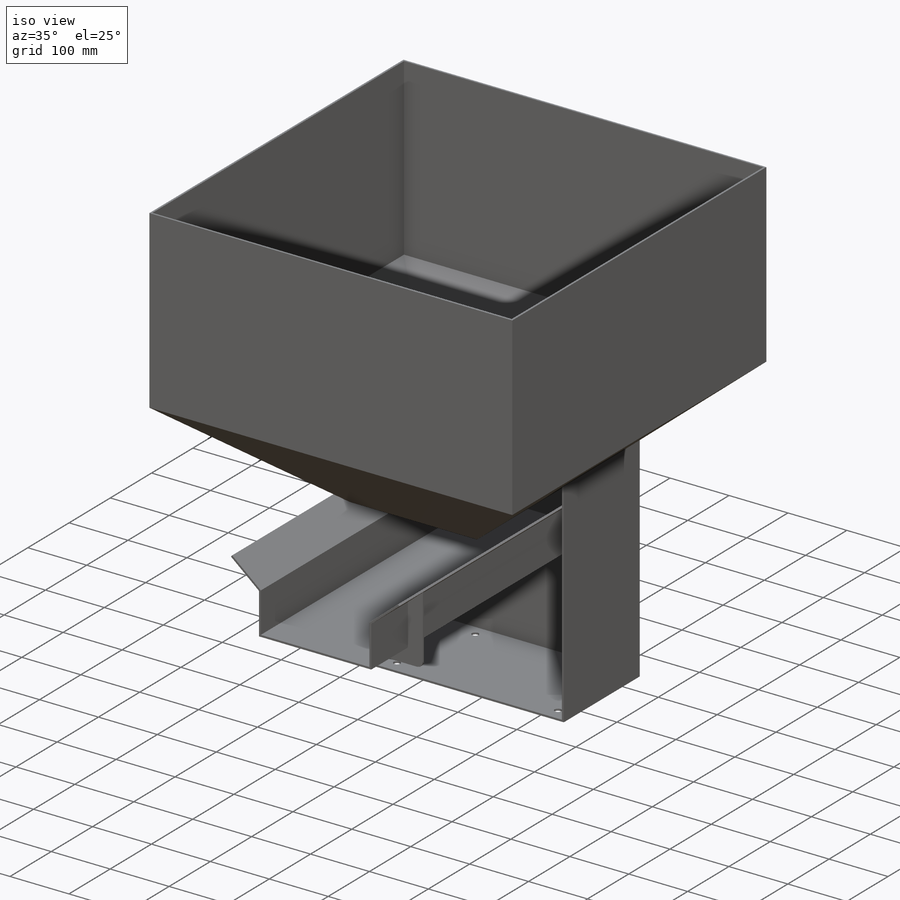
[diagram: iso view]
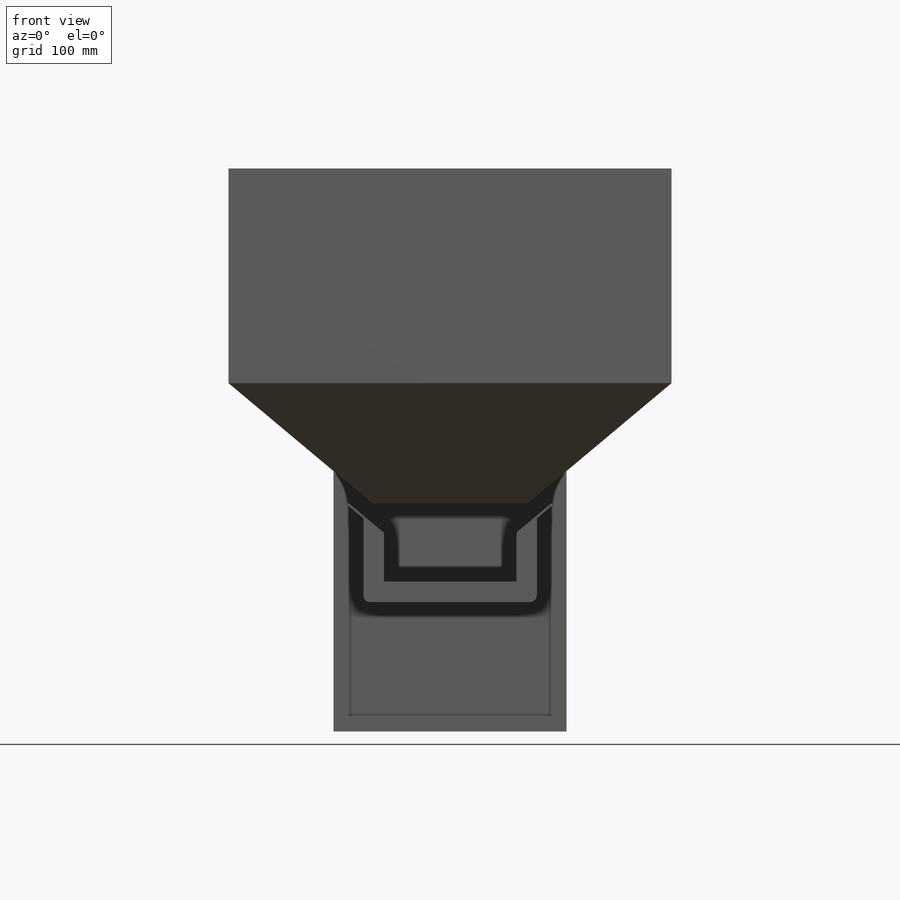
[diagram: front view]
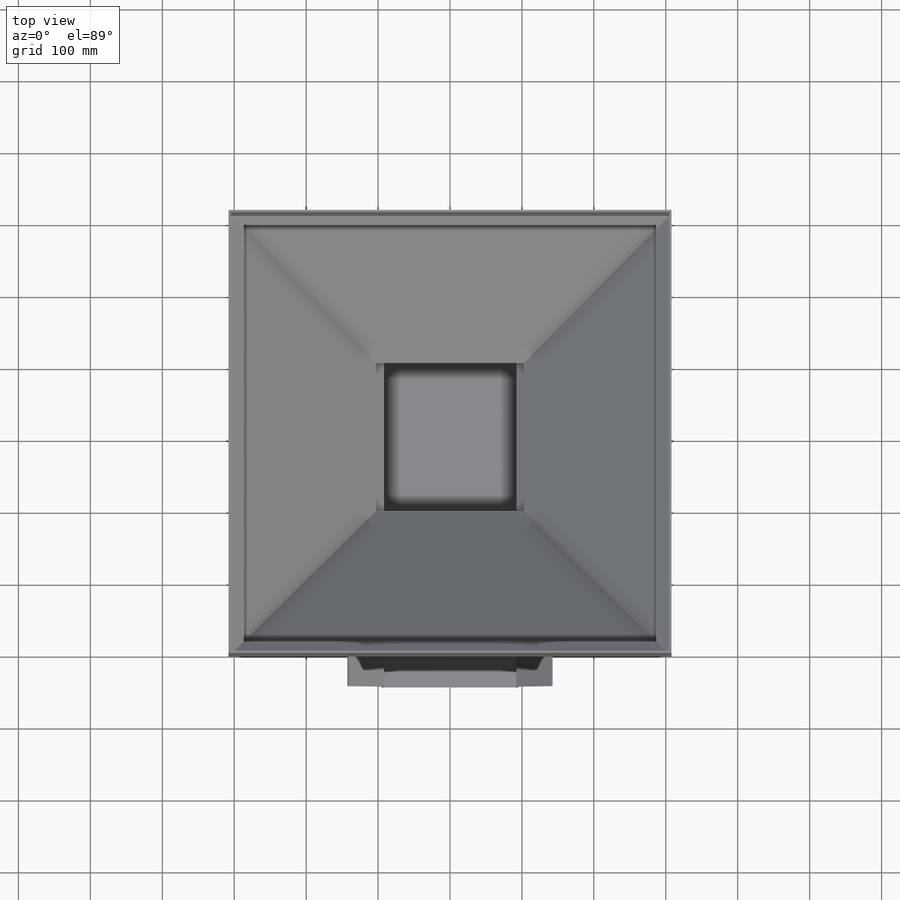
[diagram: top view]
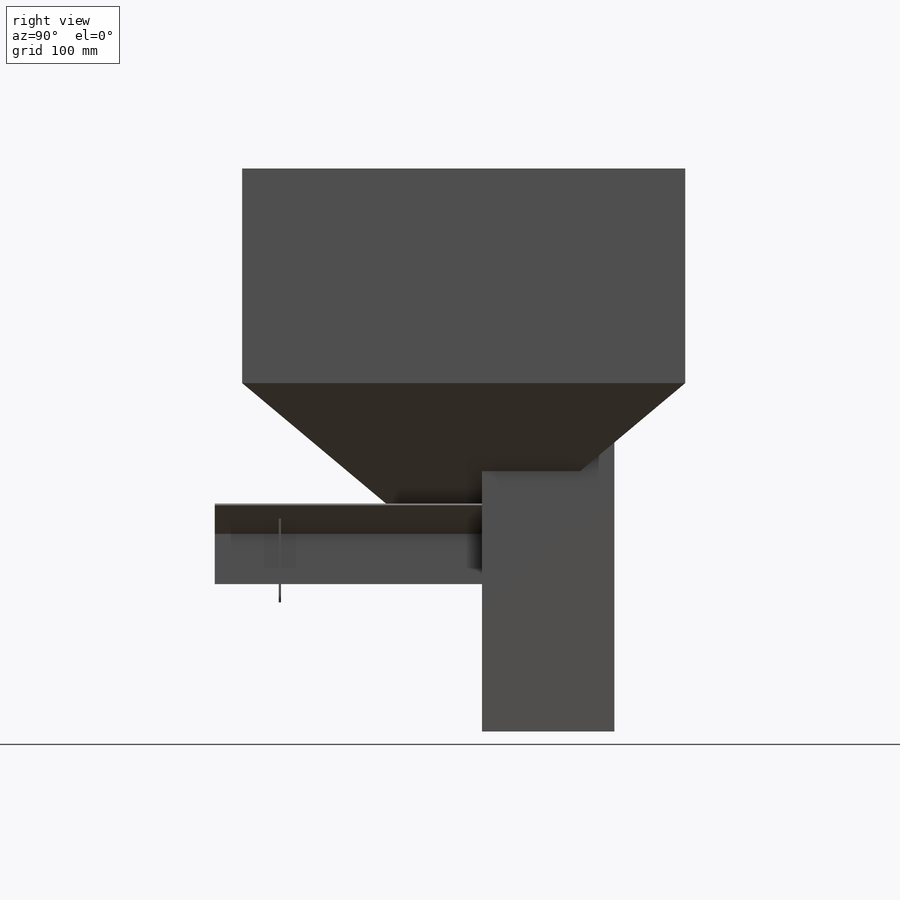
[diagram: right view]
SOLIDWORKS PART (.sldprt)
format: sldprt  version: not decoded by parser v0  size: 570,880 bytes
history: native  units: mm
features: sketch x9, extrude x5, plane x4, material x1, shell x1, hole x1, fillet x1 (+13 scaffold rows collapsed)
feature tree (35):
  scaffold x13  (default folders/planes/origin — collapsed)
  material  "Material <not specified>"
  sketch  "Sketch1"
  sketch  "param"  dims[D1=307.975mm Bin_Width=615.95mm D3=307.975mm D4=~64.973041mm]
  extrude  "Extrude1"  Depth=298.45mm
  plane  "Plane1"  Offset=298.45mm
  plane  "Plane2"  Offset=167.48125mm
  sketch  "Sketch2"  dims[D1=107.95mm Bottom_of_Loft_Width=215.9mm D3=107.95mm D4=~158.230235mm]
  shell  "Shell1"  Thickness=3.175mm
  plane  "Plane3"  Offset=782.8661mm
  sketch  "Sketch3"  dims[c1.D1=323.85mm c1.D2=184.15mm c1.D3=161.798mm c1.D4=3.175mm c1.D5=3.175mm c1.D6=3.175mm c1.D7=~228.906746mm c1.D8=~224.416618mm c2.D7=161.925mm c2.D3=25.4mm]
  extrude  "Extrude2"  [1 undecoded]
  sketch  "Sketch4"
  extrude  "Extrude3"  Depth=3.175mm
  sketch  "Sketch5"  dims[c1.D1=190.5mm c1.D2=95.25mm c1.D3=69.85mm c1.D4=~27.528628mm c2.D4=50.0deg c2.D5=~32.26986mm c3.D5=50.0deg c3.D7=63.5mm c3.D8=153.9875mm c3.D6=3.175mm]
  extrude  "Extrude4"  Depth=346.075mm
  hole  "7/16 (0.4375) Diameter Hole1"  Diameter=11.1125mm Depth=3.175mm
  sketch  "Sketch7"  dims[D1=22.225mm D2=139.7mm D3=203.2mm D4=101.6mm D5=25.4mm D6=25.4mm]
  sketch  "Sketch6"  dims[hole-wizard template sketch: 59 standard entries collapsed; hole parameters kept: c18.Thru Hole Dia.=11.1125mm c18.Thru Hole Depth=3.175mm]
  plane  "Plane4"  Offset=88.9mm
  sketch  "Sketch8"  dims[D1=25.4mm D2=25.4mm D3=25.4mm]
  extrude  "Extrude5"  Depth=3.175mm
  fillet  "Fillet1"  Radius=9.525mm
decode coverage: 14 of 17 modeling features carry decoded parameters
note: ~ marks probable driven/reference dimensions
note: 1 parameter value undecoded
note: suppression state not decoded; provenance and decode notes live in map.json
